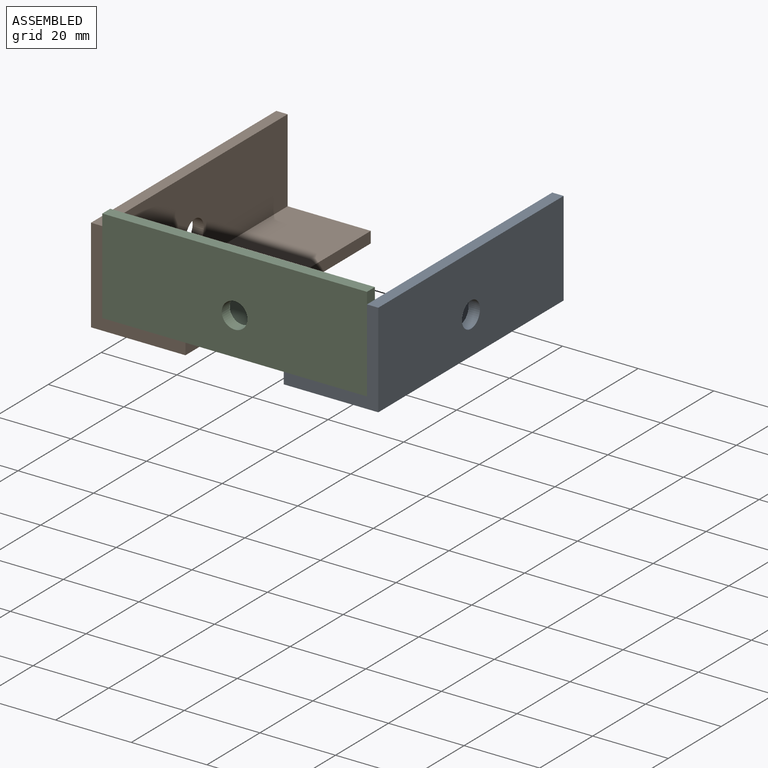
[diagram: assembled view]
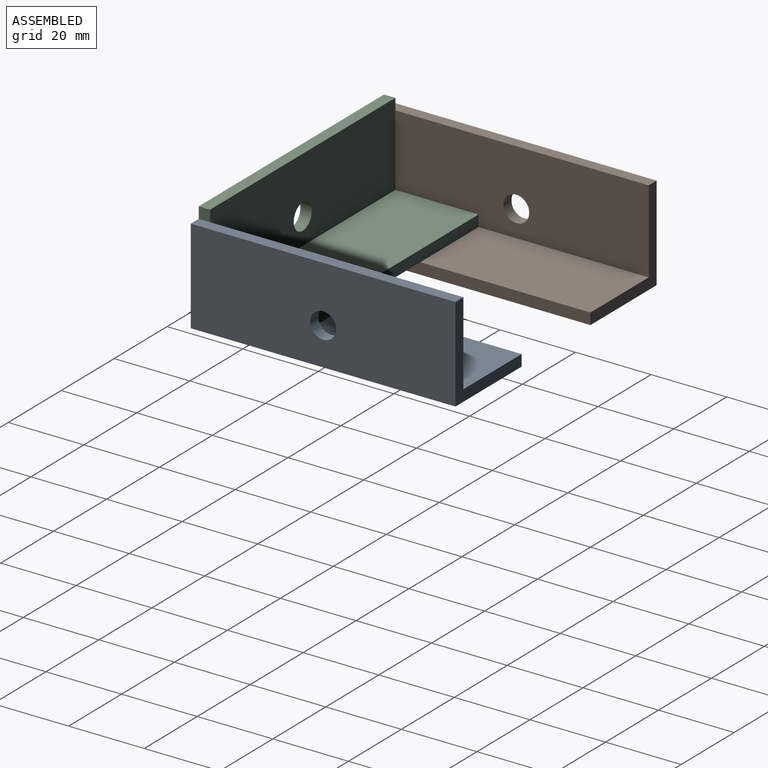
[diagram: assembled view, second angle]
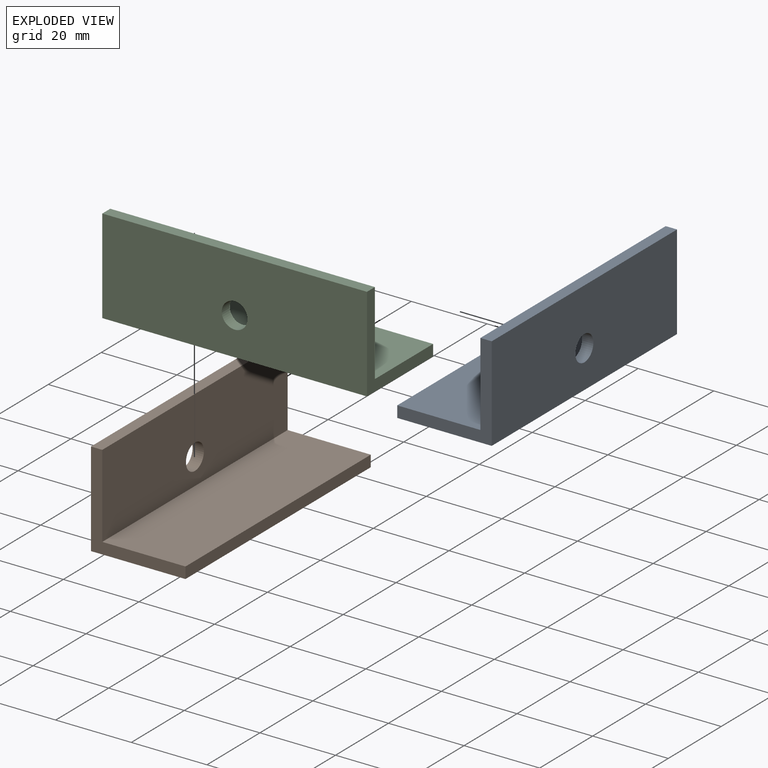
[diagram: exploded view]
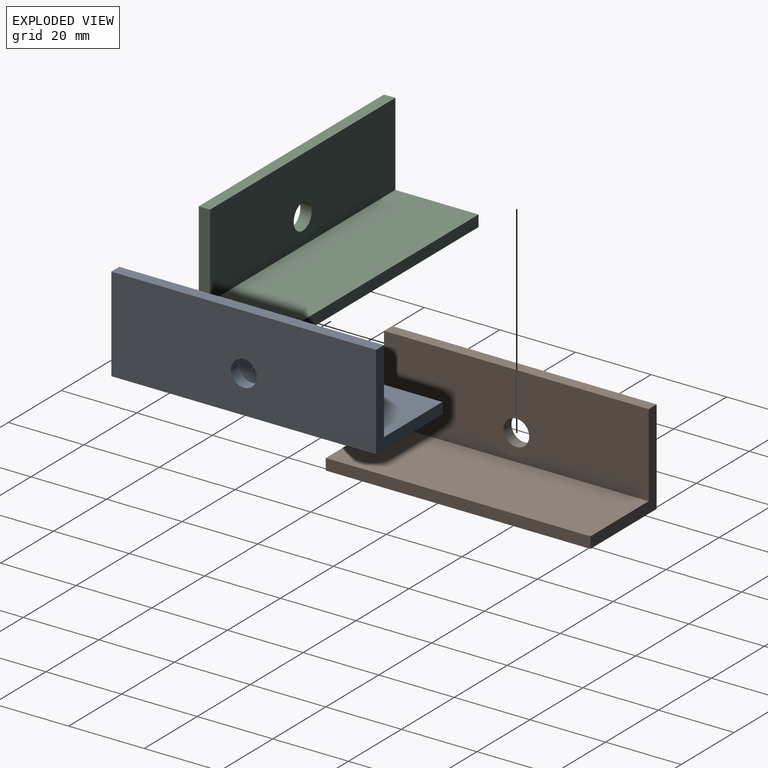
[diagram: exploded view, second angle]
ASSEMBLY  parts=3 mates=2
PART A: 9 faces, bbox 25x70x25 mm
  f0: plane 70x3mm, normal (0,0,1), area 210mm2, adj f1,f5,f6,f7
  f1: plane 70x25mm, normal (-1,0,0), area 1713.7mm2, adj f0,f2,f6,f7,f8
  f2: plane 70x25mm, normal (0,0,-1), area 1750mm2, adj f1,f3,f6,f7
  f3: plane 70x3mm, normal (1,0,0), area 210mm2, adj f2,f4,f6,f7
  f4: plane 70x22mm, normal (0,0,1), area 1540mm2, adj f3,f5,f6,f7
  f5: plane 70x22mm, normal (1,0,0), area 1503.7mm2, adj f0,f4,f6,f7,f8
  f6: plane 25x25mm, normal (0,-1,0), area 141mm2, adj f0,f1,f2,f3,f4,f5
  f7: plane 25x25mm, normal (0,1,0), area 141mm2, adj f0,f1,f2,f3,f4,f5
  f8: cylinder r=3.4mm len=6.8mm, axis (-1,0,0), area 64.1mm2, adj f1,f5
PART B: same geometry as A
PART C: same geometry as A
PLACE A rot(axis=(0,0,-1),180deg) t=(94.56,-27.5,-28.16)mm
PLACE B t=(18.56,42.5,-28.16)mm
PLACE C rot(axis=(0,0,1),90deg) t=(21.56,-27.5,-25.16)mm
MATE fastened C.f2 <-> B.f4  axis (0,0,-1) through (21.56,-27.5,-25.16)mm
MATE fastened A.f4 <-> C.f2  axis (0,0,1) through (91.56,-27.5,-25.16)mm
